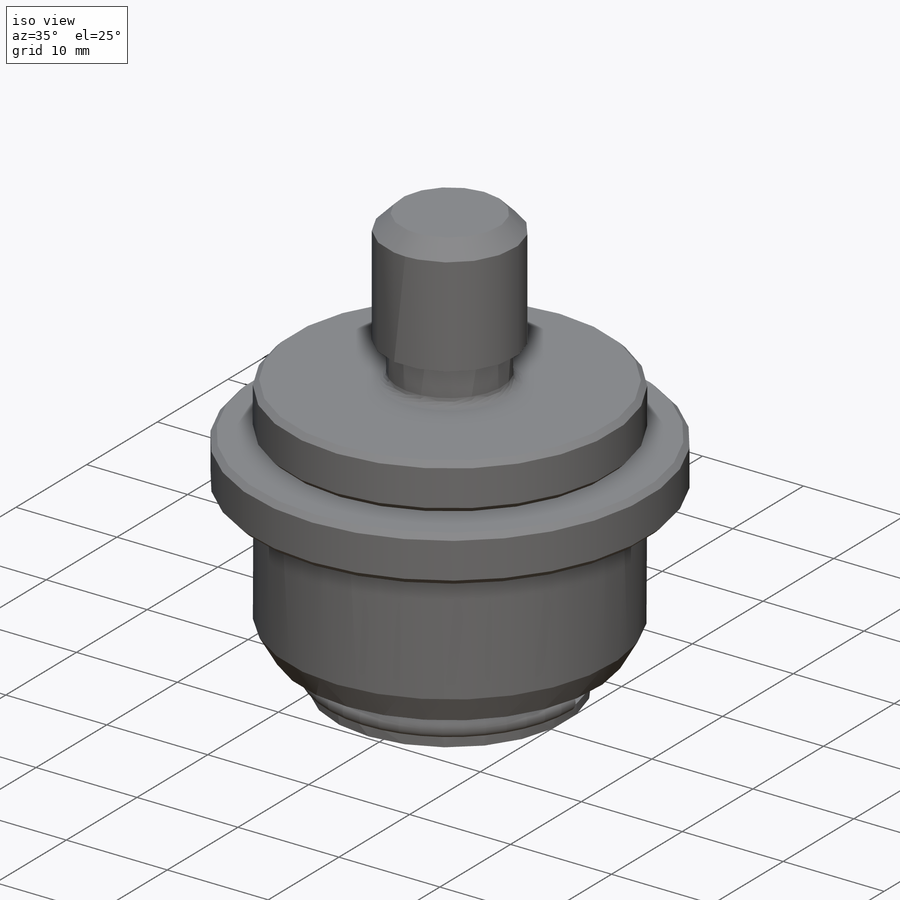
[diagram: iso view]
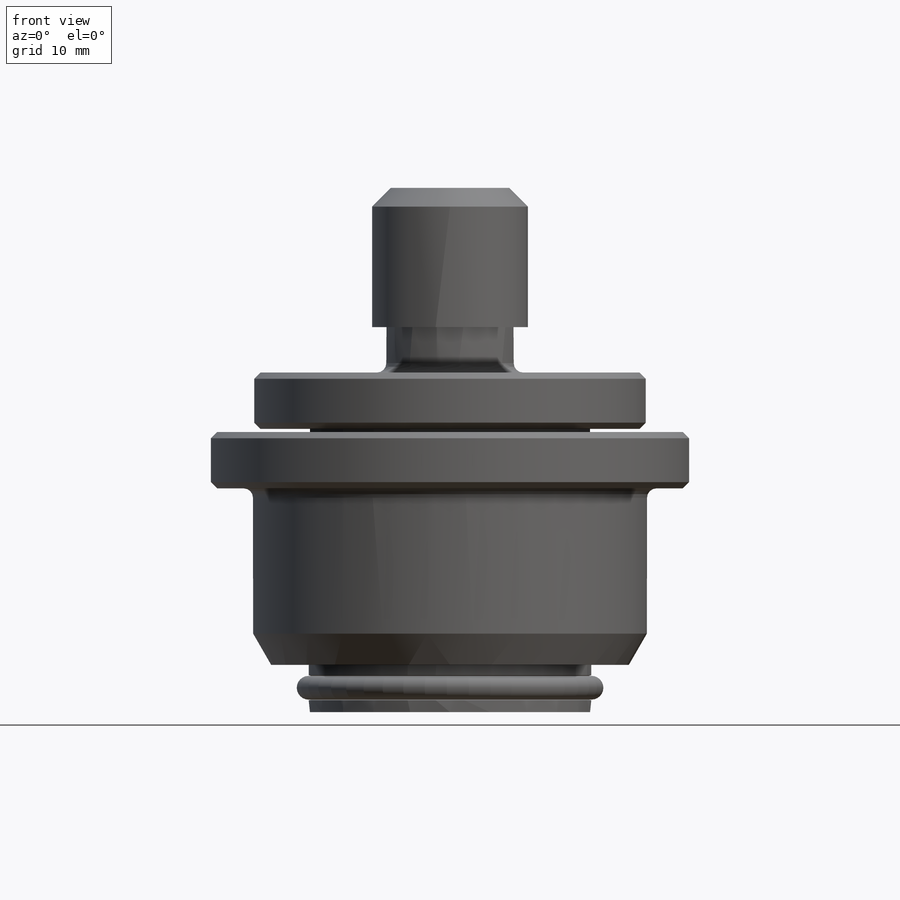
[diagram: front view]
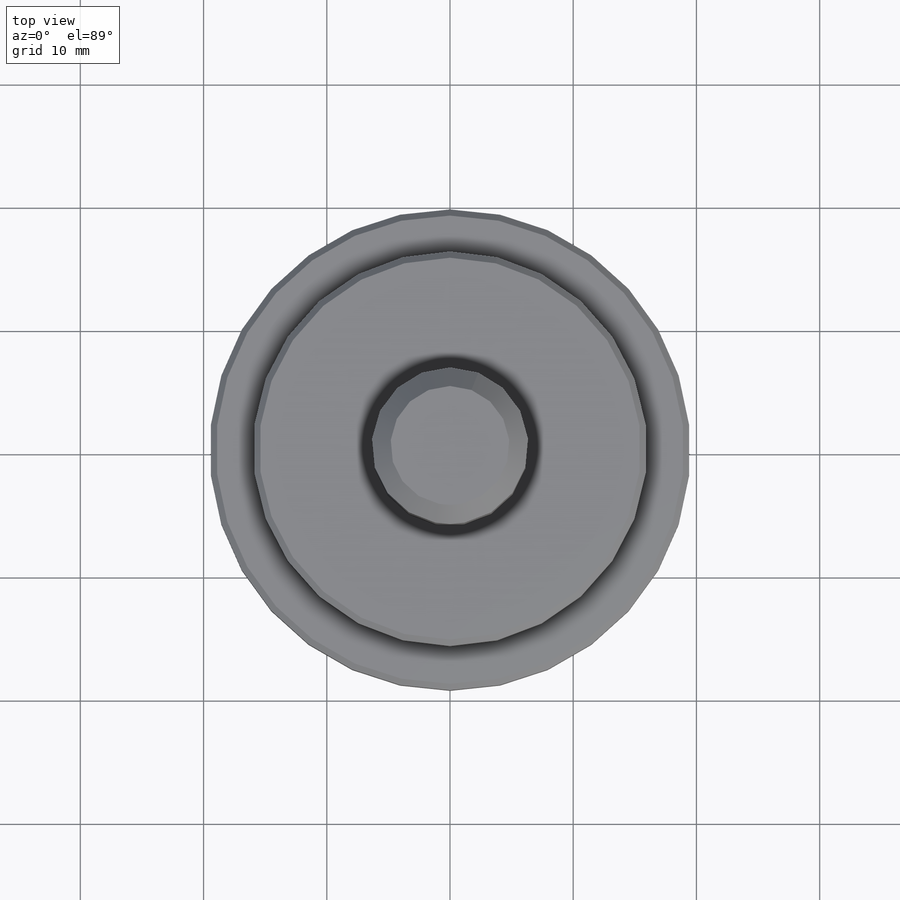
[diagram: top view]
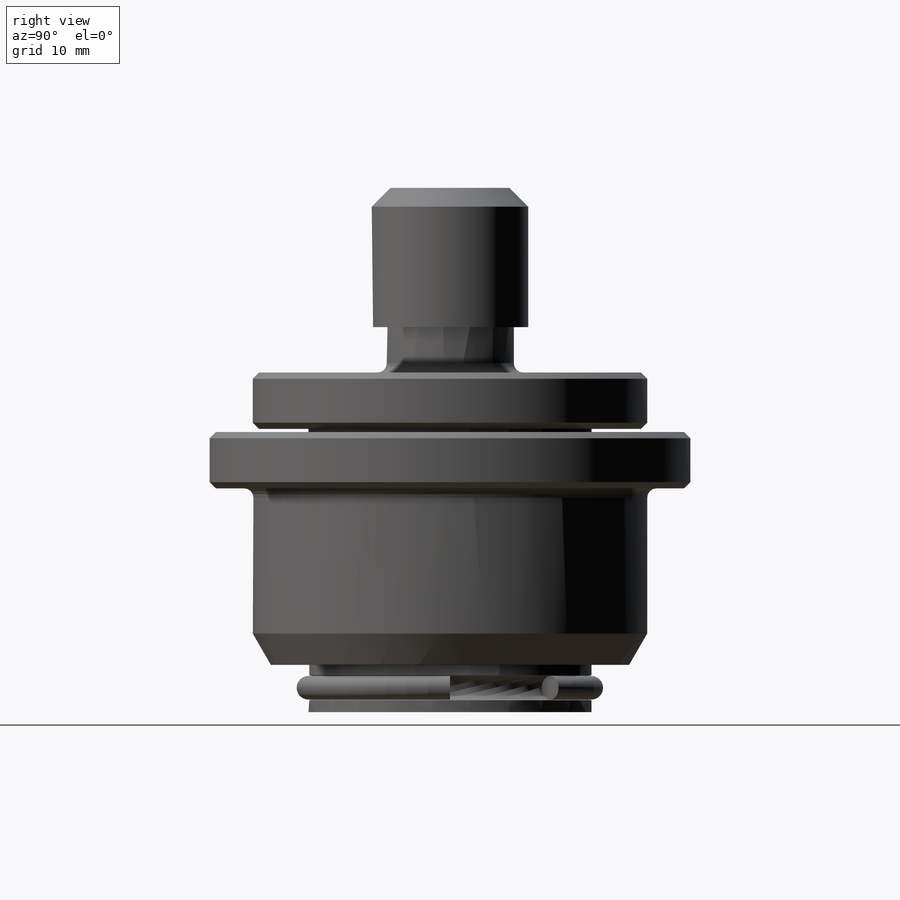
[diagram: right view]
SOLIDWORKS PART (.sldprt)
format: sldprt  version: not decoded by parser v0  size: 221,184 bytes
history: native  units: mm
features: sketch x3, revolve x3, chamfer x3, material x1 (+13 scaffold rows collapsed)
feature tree (23):
  scaffold x13  (default folders/planes/origin — collapsed)
  material  "Material <not specified>"
  sketch  "Sketch1"  dims[c1.D14=1.016mm c1.D15=1.524mm c1.D16=0.762mm c1.D1=12.7mm c1.D2=14.986mm c1.D3=4.572mm c1.D4=27.559mm c1.D5=22.9616mm c1.D6=32.004mm c1.D7=3.683mm c1.D8=10.3632mm c1.D9=16.0528mm c1.D10=7.874mm c1.D11=~0.856569mm c2.D11=45.0deg c2.D12=6.985mm c2.D13=7.493mm c2.D10=7.493mm c3.D13=0.9652mm c3.D6=32.004mm]
  revolve  "Revolve1"  Angle=360deg
  chamfer  "Chamfer1"  Distance=0.508mm Angle=45deg
  chamfer  "Chamfer2"  Distance=1.524mm Angle=45deg
  sketch  "Sketch2"  dims[c1.D13=1.016mm c1.D14=0.762mm c1.D1=18.8976mm c1.D2=4.572mm c1.D3=32.004mm c1.D4=39.0144mm c1.D5=2.54mm c1.D6=~6.064089mm c2.D6=30.0deg c2.D7=~29.071061mm c2.D8=9.398mm c2.D9=0.0508mm c2.D10=3.8354mm c2.D11=3.8354mm c2.D12=26.416mm]
  revolve  "Revolve2"  Angle=360deg
  chamfer  "Chamfer3"  Distance=0.508mm Angle=45deg
  sketch  "Sketch3"  dims[D1=0.0508mm]
  revolve  "Revolve3"  Angle=315deg
decode coverage: 9 of 9 modeling features carry decoded parameters
note: ~ marks probable driven/reference dimensions
note: suppression state not decoded; provenance and decode notes live in map.json
